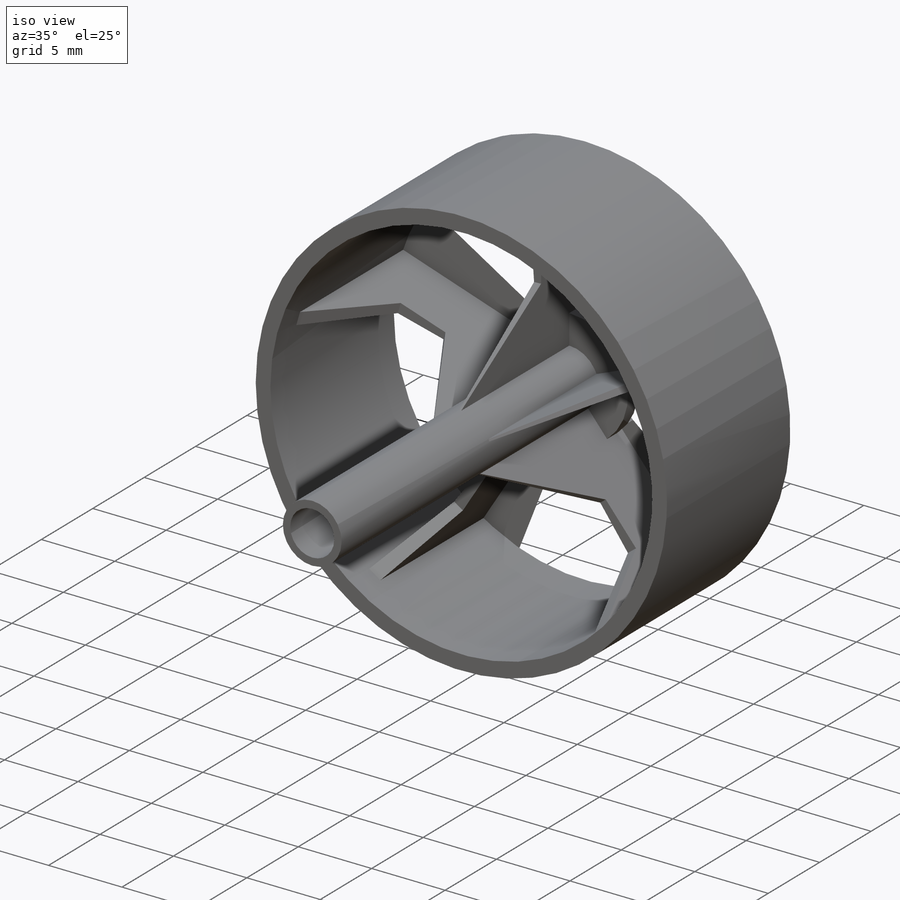
[diagram: iso view]
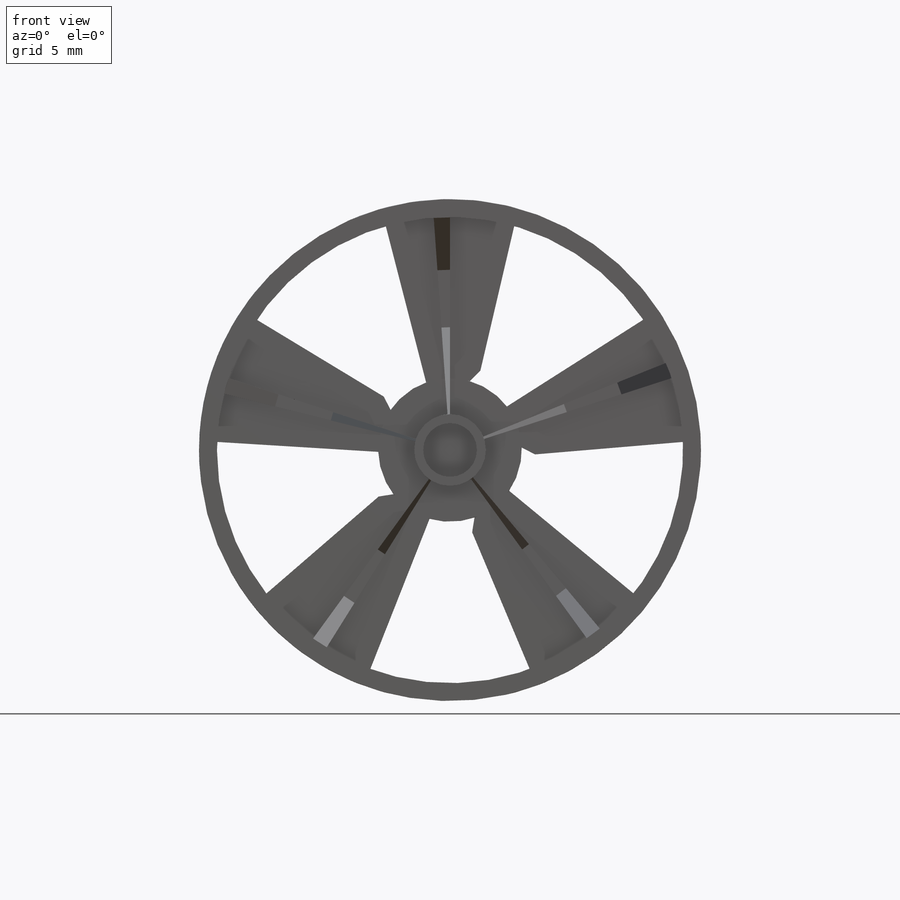
[diagram: front view]
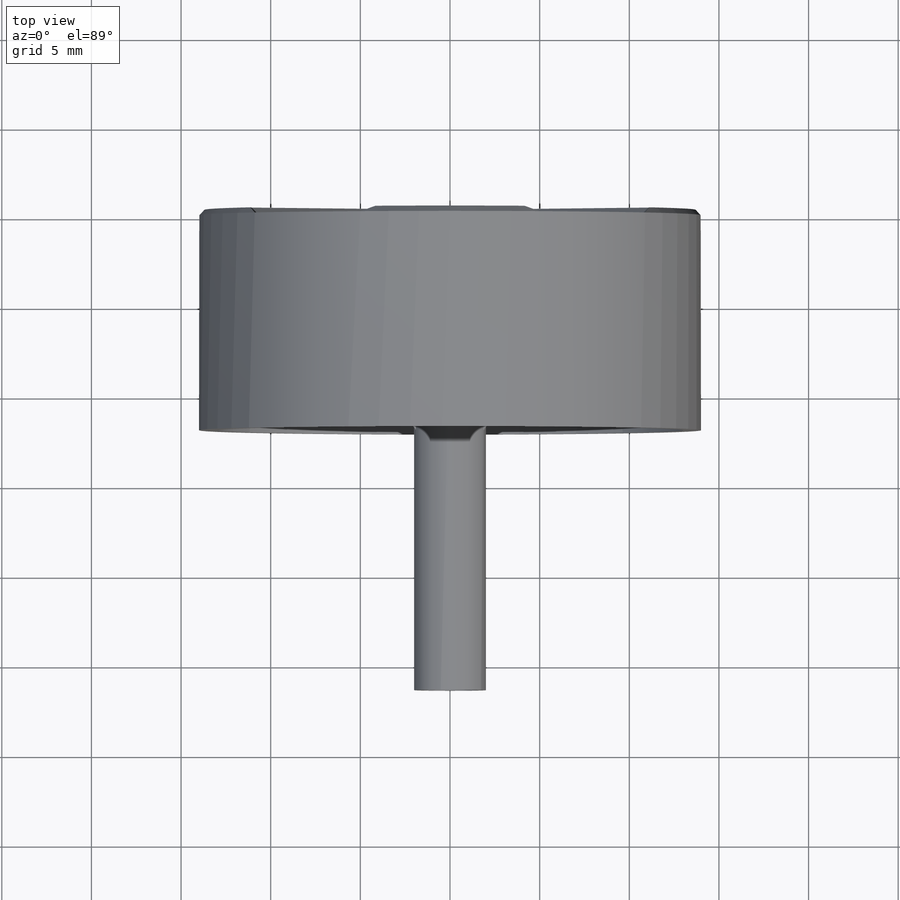
[diagram: top view]
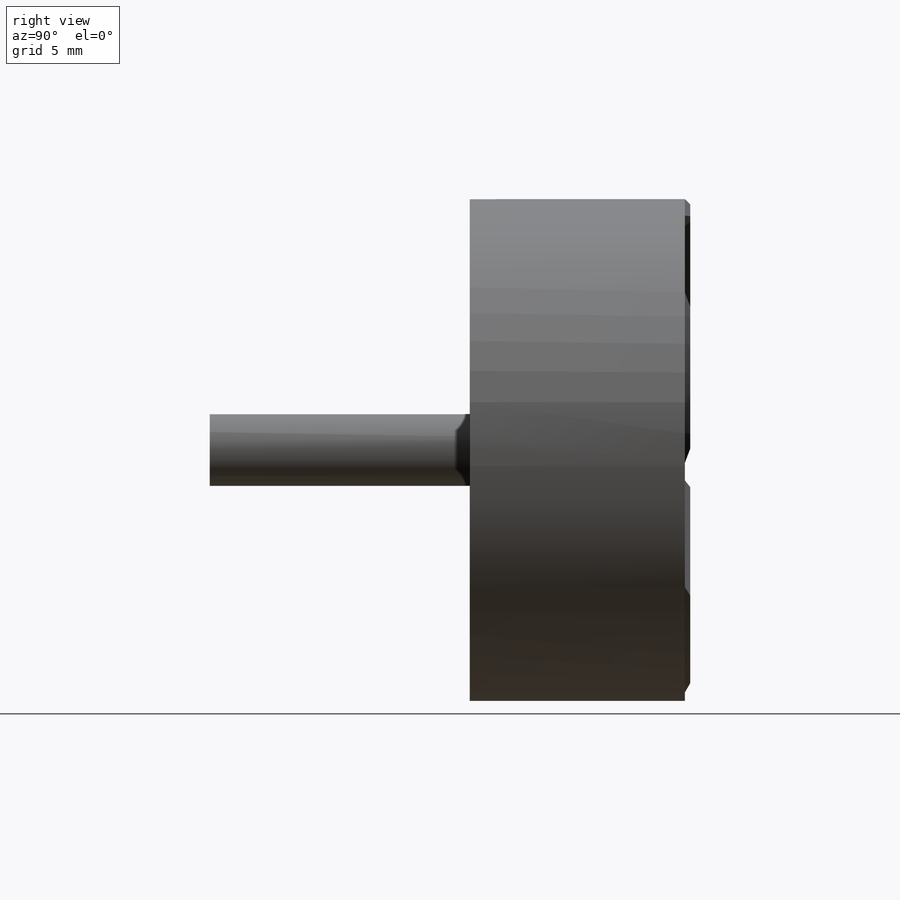
[diagram: right view]
SOLIDWORKS PART (.sldprt)
format: sldprt  version: not decoded by parser v0  size: 548,864 bytes
history: native  units: mm
features: sketch x11, extrude x5, cut_extrude x5, pattern_circular x2, material x1, plane x1, revolve x1 (+13 scaffold rows collapsed)
feature tree (39):
  scaffold x13  (default folders/planes/origin — collapsed)
  material  "Material <not specified>"
  sketch  "Esquisse1"  dims[D1=~2.536397mm]
  extrude  "Boss.-Extru.1"  Depth=12mm
  plane  "Plan1"  Offset=0.5mm
  sketch  "Esquisse3"  dims[D1=~3.129598mm]
  extrude  "Boss.-Extru.2"  Depth=1mm
  sketch  "Esquisse4"  dims[D1=~1.462374mm]
  cut_extrude  "Enlèv. mat.-Extru.1"  Depth=0.2mm
  sketch  "Esquisse5"  dims[D1=10.0mm]
  extrude  "Boss.-Extru.3"  Depth=0.3mm
  sketch  "Esquisse6"
  extrude  "Boss.-Extru.4"  [1 undecoded]
  sketch  "Esquisse7"
  cut_extrude  "Enlèv. mat.-Extru.3"  Depth=0.1mm
  sketch  "Esquisse10"
  cut_extrude  "Enlèv. mat.-Extru.4"  Depth=0.1mm
  sketch  "Esquisse11"
  cut_extrude  "Enlèv. mat.-Extru.5"  Depth=0.1mm
  pattern_circular  "Répétition circulaire1"  Count=5 Angle=360deg
  sketch  "Esquisse12"  dims[D1=1.8mm]
  extrude  "Boss.-Extru.5"  Depth=25mm
  sketch  "Esquisse16"
  revolve  "Révolution1"  Angle=4deg
  pattern_circular  "Répétition circulaire2"  Count=5 Angle=360deg
  sketch  "Esquisse17"
  cut_extrude  "Enlèv. mat.-Extru.6"  Depth=25mm
decode coverage: 17 of 24 modeling features carry decoded parameters
note: ~ marks probable driven/reference dimensions
note: 1 parameter value undecoded
note: suppression state not decoded; provenance and decode notes live in map.json
